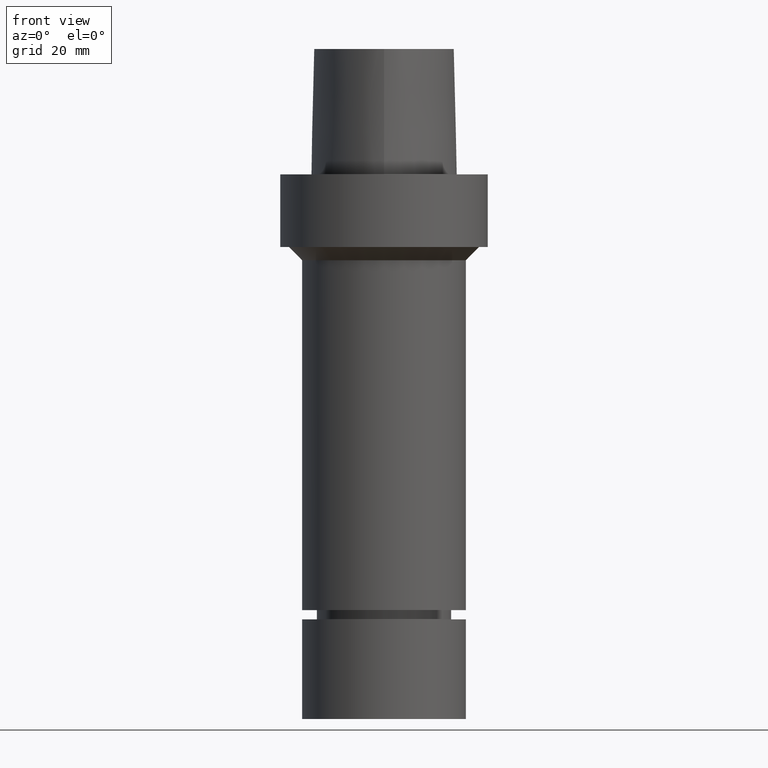
[diagram: clean part render]
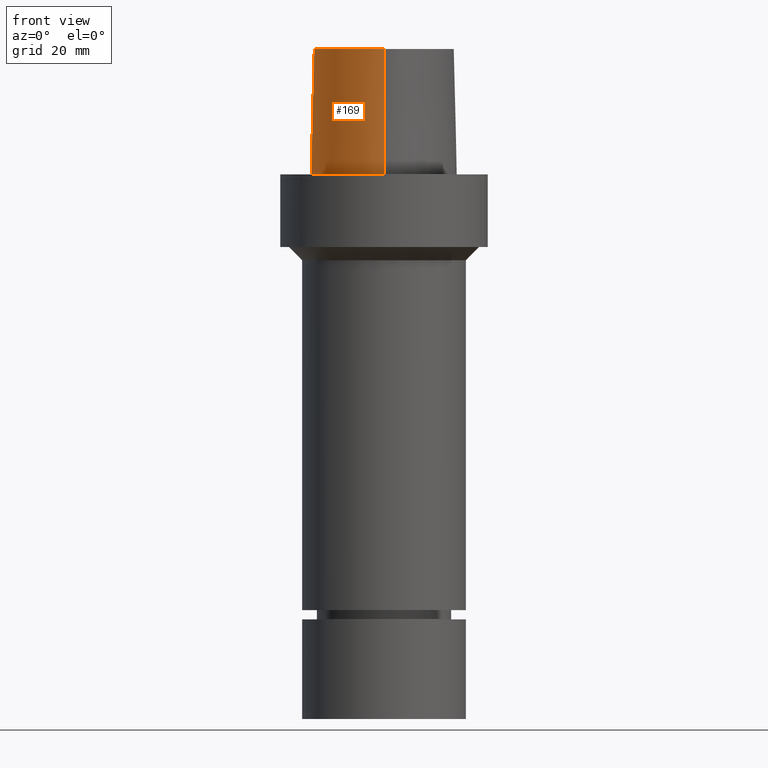
[diagram: same view with one face highlighted and labeled with its STEP entity id]
A machine part, front view. The second image highlights one B-rep face of the part: STEP entity #169.
In plain terms, the highlighted face is a freeform B-spline surface patch.
Its self-contained STEP definition (entity closure, byte-faithful):
#92=EDGE_CURVE('Unnamed[1]',#193,#221,#222,.T.);
#134=EDGE_CURVE('Unnamed[1]',#218,#221,#284,.T.);
#136=EDGE_CURVE('Unnamed[1]',#286,#193,#287,.T.);
#142=EDGE_CURVE('Unnamed[1]',#218,#286,#295,.T.);
#169=ADVANCED_FACE('Unnamed[1]',(#333),#334,.T.);
#193=VERTEX_POINT('',#351);
#218=VERTEX_POINT('',#397);
#221=VERTEX_POINT('',#402);
#222=B_SPLINE_CURVE_WITH_KNOTS('',3,(#403,#404,#405,#406,#407,#408,#409,#410,#411,#412,#413,#414,#415,#416,#417,#418,#419,#420),.UNSPECIFIED.,.F.,.F.,(4,1,1,1,1,1,1,1,1,2,1,1,1,1,4),(-6.6151339308743,-6.20168806019465,-5.78824218951501,-5.37479631883537,-4.96135044815572,-4.13445870679644,-3.30756696543715,-2.89412109475751,-2.48067522407786,-2.06722935339822,-1.65378348271857,-1.24033761203893,-0.826891741359287,-0.413445870679644,0.0),.UNSPECIFIED.);
#284=LINE('',#565,#566);
#286=VERTEX_POINT('',#569);
#287=LINE('',#570,#571);
#295=B_SPLINE_CURVE_WITH_KNOTS('',3,(#582,#583,#584,#585,#586,#587,#588,#589,#590,#591,#592,#593,#594,#595,#596,#597),.UNSPECIFIED.,.F.,.F.,(4,1,1,1,1,1,1,1,1,1,1,1,1,4),(0.0,0.447924670568964,0.9388024242536,1.50591409090711,2.07314340012323,2.72424957442464,3.2253501842849,3.80982102049476,4.34867996267067,4.85900173381144,5.37972031856977,6.03459825488646,6.61113557741484,6.61513393087395),.UNSPECIFIED.);
#333=FACE_OUTER_BOUND('',#645,.T.);
#334=B_SPLINE_SURFACE_WITH_KNOTS('',3,3,((#646,#647,#648,#649),(#650,#651,#652,#653),(#654,#655,#656,#657),(#658,#659,#660,#661),(#662,#663,#664,#665),(#666,#667,#668,#669),(#670,#671,#672,#673),(#674,#675,#676,#677),(#678,#679,#680,#681),(#682,#683,#684,#685),(#686,#687,#688,#689),(#690,#691,#692,#693),(#694,#695,#696,#697),(#698,#699,#700,#701),(#702,#703,#704,#705),(#706,#707,#708,#709),(#710,#711,#712,#713),(#714,#715,#716,#717)),.UNSPECIFIED.,.F.,.F.,.F.,(4,1,1,1,1,1,1,1,1,2,1,1,1,1,4),(4,4),(-6.6151339308743,-6.20168806019465,-5.78824218951501,-5.37479631883537,-4.96135044815572,-4.13445870679644,-3.30756696543715,-2.89412109475751,-2.48067522407786,-2.06722935339822,-1.65378348271857,-1.24033761203893,-0.826891741359287,-0.413445870679644,0.0),(-3.8,0.0),.UNSPECIFIED.);
#351=CARTESIAN_POINT('',(0.04359356758149,-23.4691235068931,7.78075697532443E-032));
#397=CARTESIAN_POINT('',(-0.001218547003662,19.7276821925089,38.0));
#402=CARTESIAN_POINT('',(-0.045171994691285,20.6766009553285,1.6755590516169E-031));
#403=CARTESIAN_POINT('',(0.04359356758149,-23.4691235068931,7.78075697532443E-032));
#404=CARTESIAN_POINT('',(-1.4714994713963,-23.4767895315797,2.46519032881566E-032));
#405=CARTESIAN_POINT('',(-4.43923476371401,-22.821149804767,-4.93038065763132E-032));
#406=CARTESIAN_POINT('',(-8.35043230079961,-20.8000751253325,-9.86076131526265E-032));
#407=CARTESIAN_POINT('',(-11.744900222602,-18.1556117874078,-1.97215226305253E-031));
#408=CARTESIAN_POINT('',(-15.6989602501314,-14.0406306929147,-1.97215226305253E-031));
#409=CARTESIAN_POINT('',(-19.5352875070682,-8.00624990770787,1.97215226305253E-031));
#410=CARTESIAN_POINT('',(-21.7205626190491,-1.16081708945282,0.0));
#411=CARTESIAN_POINT('',(-22.2486616783342,4.54965558738736,0.0));
#412=CARTESIAN_POINT('',(-21.6646421256468,9.00229539124618,0.0));
#413=CARTESIAN_POINT('',(-20.3945635471922,11.7780544971003,0.0));
#414=CARTESIAN_POINT('',(-18.5925528034471,14.1980602922581,0.0));
#415=CARTESIAN_POINT('',(-16.3226584122258,16.1777748720707,0.0));
#416=CARTESIAN_POINT('',(-12.5076407874579,18.2524201541303,9.86076131526265E-032));
#417=CARTESIAN_POINT('',(-8.46776192107786,19.679114377952,9.86076131526265E-032));
#418=CARTESIAN_POINT('',(-4.23043497193604,20.487781597334,1.97215226305253E-031));
#419=CARTESIAN_POINT('',(-1.42313094248379,20.6127745766442,1.10933564796705E-031));
#420=CARTESIAN_POINT('',(-0.045171994691285,20.6766009553285,1.6755590516169E-031));
#565=CARTESIAN_POINT('',(-0.001218547003662,19.7276821925089,38.0));
#566=VECTOR('',#831,38.0118715498723);
#569=CARTESIAN_POINT('',(0.038736923393866,-22.5191997536361,38.0));
#570=CARTESIAN_POINT('',(0.038736923393866,-22.5191997536361,38.0));
#571=VECTOR('',#832,38.0118715498723);
#582=CARTESIAN_POINT('',(-0.001218547003662,19.7276821925089,38.0));
#583=CARTESIAN_POINT('',(-1.49408492138443,19.6585333605309,38.0));
#584=CARTESIAN_POINT('',(-4.62297391420352,19.513604770166,38.0));
#585=CARTESIAN_POINT('',(-9.56160616752212,18.4291575730197,38.0));
#586=CARTESIAN_POINT('',(-14.5427684976927,16.2697452580488,38.0));
#587=CARTESIAN_POINT('',(-19.4315563551602,12.5302108980807,38.0));
#588=CARTESIAN_POINT('',(-21.306358833612,6.76352894547076,38.0));
#589=CARTESIAN_POINT('',(-21.0724946936277,0.957075236984038,38.0));
#590=CARTESIAN_POINT('',(-19.7876470880144,-4.34628503581652,38.0));
#591=CARTESIAN_POINT('',(-17.5396999600095,-9.33314444653089,38.0));
#592=CARTESIAN_POINT('',(-14.645447733857,-13.7185760345629,38.0));
#593=CARTESIAN_POINT('',(-10.7996726536643,-17.856257282137,38.0));
#594=CARTESIAN_POINT('',(-6.00479510196376,-21.2687382067675,38.0));
#595=CARTESIAN_POINT('',(-1.90747171908525,-22.5250621415864,38.0));
#596=CARTESIAN_POINT('',(0.025424107066464,-22.5192678176378,38.0));
#597=CARTESIAN_POINT('',(0.038736923394311,-22.519199753636,38.0));
#645=EDGE_LOOP('',(#883,#884,#885,#886));
#646=CARTESIAN_POINT('',(0.038736923393866,-22.5191997536361,38.0));
#647=CARTESIAN_POINT('',(0.04035580478973,-22.8358410047159,25.3333333333066));
#648=CARTESIAN_POINT('',(0.041974686185626,-23.1524822558133,12.6666666666934));
#649=CARTESIAN_POINT('',(0.04359356758149,-23.4691235068931,7.78075697532443E-032));
#650=CARTESIAN_POINT('',(-1.33786123484754,-22.5261650259856,38.0));
#651=CARTESIAN_POINT('',(-1.38240731367927,-22.8430399310626,25.3333333333066));
#652=CARTESIAN_POINT('',(-1.42695339249092,-23.1599147815484,12.6666666666934));
#653=CARTESIAN_POINT('',(-1.4714994713963,-23.4767895315797,2.46519032881566E-032));
#654=CARTESIAN_POINT('',(-4.08909358431842,-21.9268839879558,38.0));
#655=CARTESIAN_POINT('',(-4.20580731135515,-22.2249725500078,25.3333333333066));
#656=CARTESIAN_POINT('',(-4.32252104640446,-22.5230611651922,12.6666666666934));
#657=CARTESIAN_POINT('',(-4.43923476371401,-22.821149804767,-4.93038065763132E-032));
#658=CARTESIAN_POINT('',(-7.8333083619947,-19.9973514861616,38.0));
#659=CARTESIAN_POINT('',(-8.00568301809614,-20.2649260859405,25.3333333333066));
#660=CARTESIAN_POINT('',(-8.1780576640789,-20.532500564315,12.6666666666934));
#661=CARTESIAN_POINT('',(-8.35043230079961,-20.8000751253325,-9.86076131526265E-032));
#662=CARTESIAN_POINT('',(-11.1035071147626,-17.450554957873,38.0));
#663=CARTESIAN_POINT('',(-11.3173048160562,-17.6855739222454,25.3333333333066));
#664=CARTESIAN_POINT('',(-11.5311025116181,-17.9205928617968,12.6666666666934));
#665=CARTESIAN_POINT('',(-11.744900222602,-18.1556117874078,-1.97215226305253E-031));
#666=CARTESIAN_POINT('',(-14.9379535189057,-13.461132049697,38.0));
#667=CARTESIAN_POINT('',(-15.191622410671,-13.6542981711372,25.3333333333066));
#668=CARTESIAN_POINT('',(-15.4452913389853,-13.8474645327131,12.6666666666934));
#669=CARTESIAN_POINT('',(-15.6989602501314,-14.0406306929147,-1.97215226305253E-031));
#670=CARTESIAN_POINT('',(-18.6681263017223,-7.59391757463204,38.0));
#671=CARTESIAN_POINT('',(-18.9571800800711,-7.73136168081928,25.3333333333066));
#672=CARTESIAN_POINT('',(-19.2462337287194,-7.86880572399774,12.6666666666934));
#673=CARTESIAN_POINT('',(-19.5352875070682,-8.00624990770787,1.97215226305253E-031));
#674=CARTESIAN_POINT('',(-20.7857899858339,-0.952862819790525,38.0));
#675=CARTESIAN_POINT('',(-21.0973808305434,-1.02218087467418,25.3333333333066));
#676=CARTESIAN_POINT('',(-21.408971677436,-1.09149899580772,12.6666666666934));
#677=CARTESIAN_POINT('',(-21.7205626190491,-1.16081708945282,0.0));
#678=CARTESIAN_POINT('',(-21.2911760556836,4.5469215763113,38.0));
#679=CARTESIAN_POINT('',(-21.610337904926,4.54783292082248,25.3333333333066));
#680=CARTESIAN_POINT('',(-21.9294998290918,4.54874426225691,12.6666666666934));
#681=CARTESIAN_POINT('',(-22.2486616783342,4.54965558738736,0.0));
#682=CARTESIAN_POINT('',(-20.7345309521958,8.74909381391006,38.0));
#683=CARTESIAN_POINT('',(-21.0445680426217,8.83349432450556,25.3333333333066));
#684=CARTESIAN_POINT('',(-21.3546050933631,8.91789488065068,12.6666666666934));
#685=CARTESIAN_POINT('',(-21.6646421256468,9.00229539124618,0.0));
#686=CARTESIAN_POINT('',(-19.5531512296439,11.3174844040833,38.0));
#687=CARTESIAN_POINT('',(-19.8336219699984,11.4710077674213,25.3333333333066));
#688=CARTESIAN_POINT('',(-20.1140927680763,11.6245311337623,12.6666666666934));
#689=CARTESIAN_POINT('',(-20.3945635471922,11.7780544971003,0.0));
#690=CARTESIAN_POINT('',(-17.9100913688793,13.524027510437,38.0));
#691=CARTESIAN_POINT('',(-18.1375785458768,13.7487051053655,25.3333333333066));
#692=CARTESIAN_POINT('',(-18.365065665211,13.9733826973296,12.6666666666934));
#693=CARTESIAN_POINT('',(-18.5925528034471,14.1980602922581,0.0));
#694=CARTESIAN_POINT('',(-15.7996349656398,15.3762170634413,38.0));
#695=CARTESIAN_POINT('',(-15.9739761051783,15.6434029846179,25.3333333333066));
#696=CARTESIAN_POINT('',(-16.1483172726872,15.9105889315134,12.6666666666934));
#697=CARTESIAN_POINT('',(-16.3226584122258,16.1777748720707,0.0));
#698=CARTESIAN_POINT('',(-12.1175640002064,17.3825162484012,38.0));
#699=CARTESIAN_POINT('',(-12.2475895903055,17.6724842099619,25.3333333333066));
#700=CARTESIAN_POINT('',(-12.3776152070492,17.9624521925696,12.6666666666934));
#701=CARTESIAN_POINT('',(-12.5076407874579,18.2524201541303,9.86076131526265E-032));
#702=CARTESIAN_POINT('',(-8.21761151654222,18.7588585989994,38.0));
#703=CARTESIAN_POINT('',(-8.30099497910627,19.0656105427881,25.3333333333066));
#704=CARTESIAN_POINT('',(-8.38437843913309,19.3723624535439,12.6666666666934));
#705=CARTESIAN_POINT('',(-8.46776192107786,19.679114377952,9.86076131526265E-032));
#706=CARTESIAN_POINT('',(-4.13466093881225,19.5396850837055,38.0));
#707=CARTESIAN_POINT('',(-4.16658562115465,19.8557172636973,25.3333333333066));
#708=CARTESIAN_POINT('',(-4.19851029939059,20.1717494367229,12.6666666666934));
#709=CARTESIAN_POINT('',(-4.23043497193604,20.487781597334,1.97215226305253E-031));
#710=CARTESIAN_POINT('',(-1.37917220403684,19.6638560588908,38.0));
#711=CARTESIAN_POINT('',(-1.39382511685176,19.98016223565,25.3333333333066));
#712=CARTESIAN_POINT('',(-1.40847802945569,20.296468399885,12.6666666666934));
#713=CARTESIAN_POINT('',(-1.42313094248379,20.6127745766442,1.10933564796705E-031));
#714=CARTESIAN_POINT('',(-0.001218547003662,19.7276821925089,38.0));
#715=CARTESIAN_POINT('',(-0.015869696232855,20.043988446791,25.3333333333066));
#716=CARTESIAN_POINT('',(-0.030520845462092,20.3602947010464,12.6666666666934));
#717=CARTESIAN_POINT('',(-0.045171994691285,20.6766009553285,1.6755590516169E-031));
#831=DIRECTION('',(-0.001156308434589,0.02496374748543,-0.999687688361864));
#832=DIRECTION('',(0.000127766510556,-0.024990186342461,-0.999687688361864));
#883=ORIENTED_EDGE('',*,*,#92,.F.);
#884=ORIENTED_EDGE('',*,*,#136,.F.);
#885=ORIENTED_EDGE('',*,*,#142,.F.);
#886=ORIENTED_EDGE('',*,*,#134,.T.);